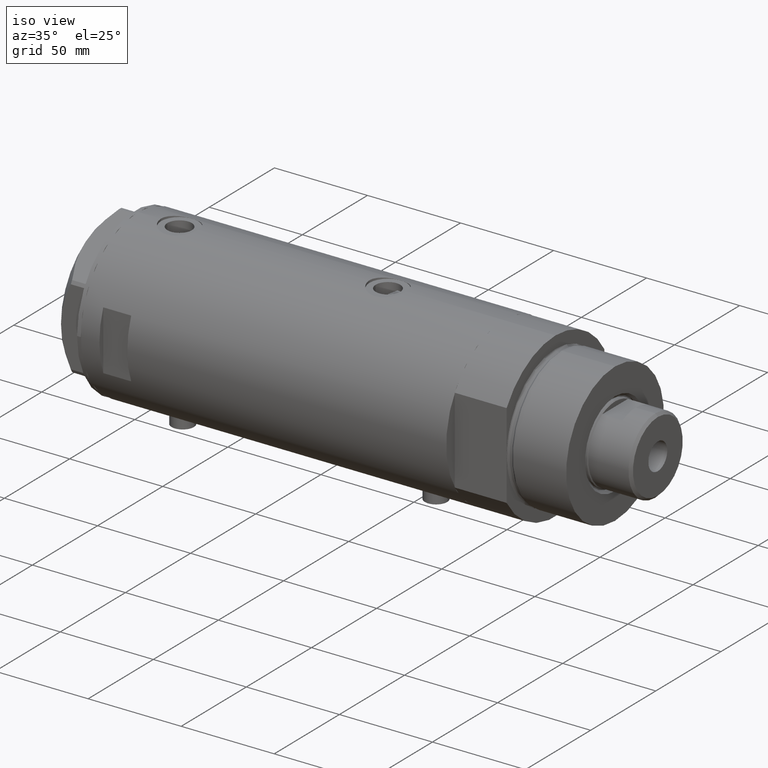
[diagram: clean part render]
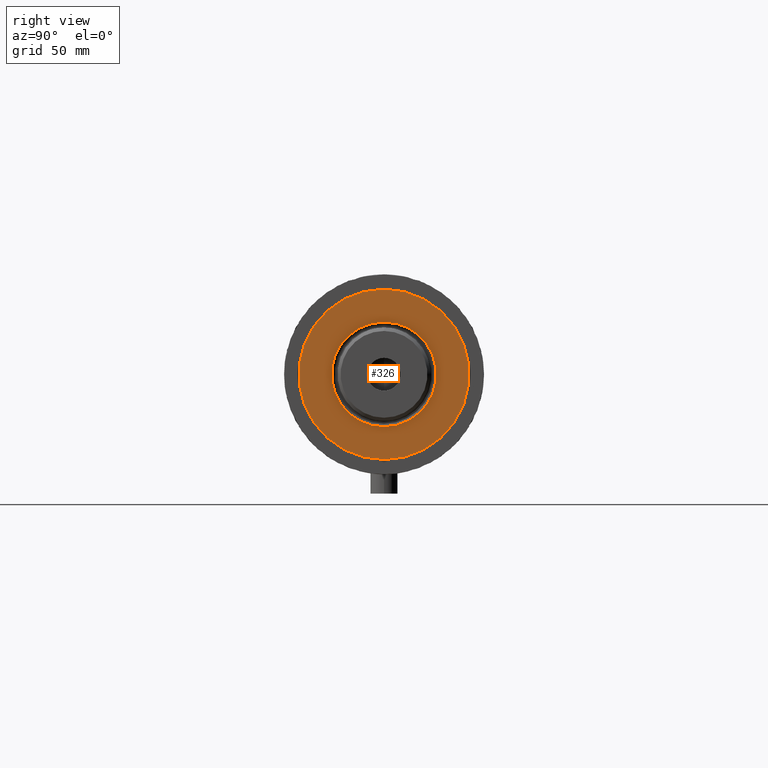
[diagram: tour spotlight — one face highlighted and labeled with its STEP entity id]
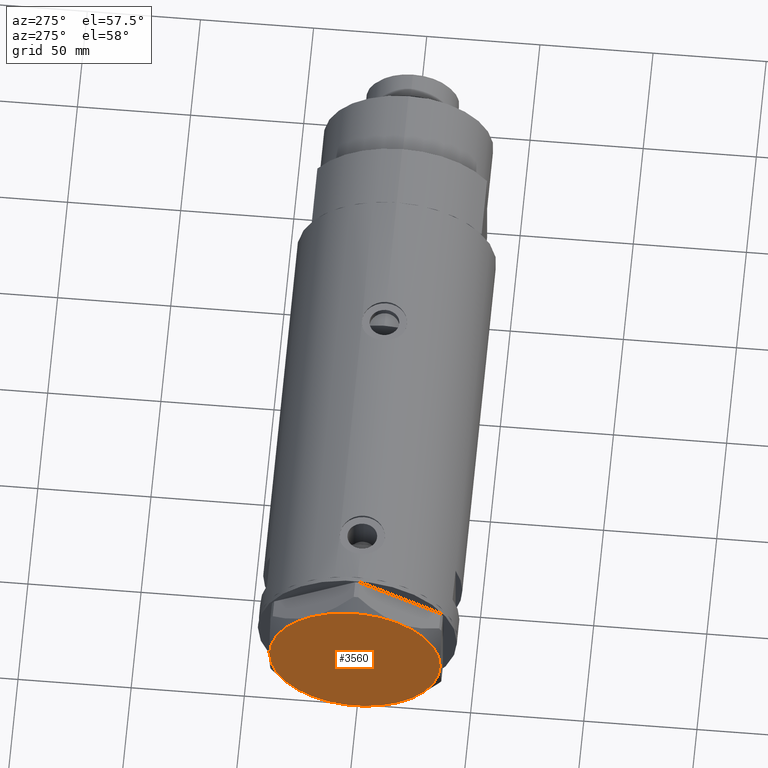
[diagram: tour spotlight — one face highlighted and labeled with its STEP entity id]
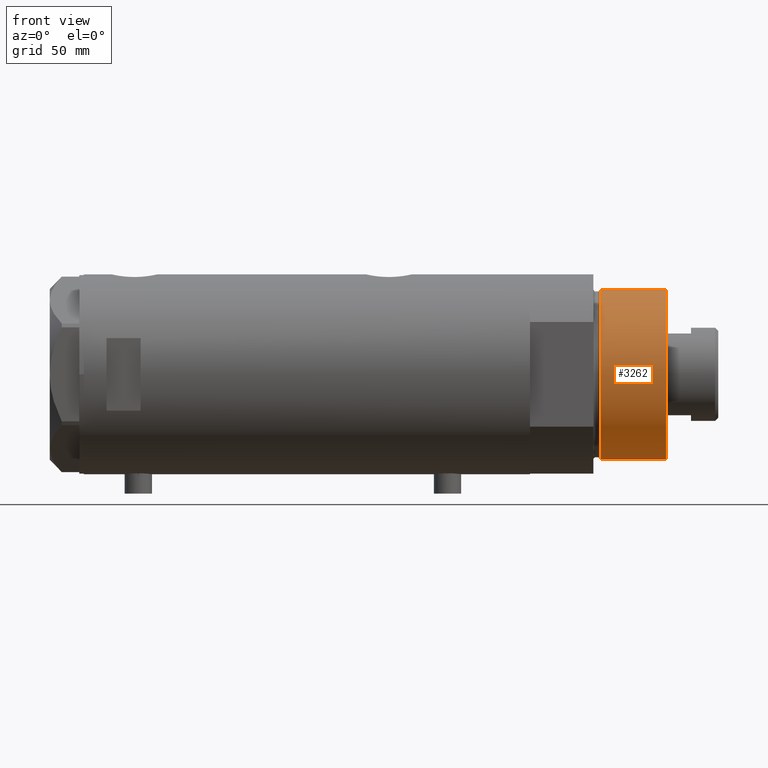
[diagram: tour spotlight — one face highlighted and labeled with its STEP entity id]
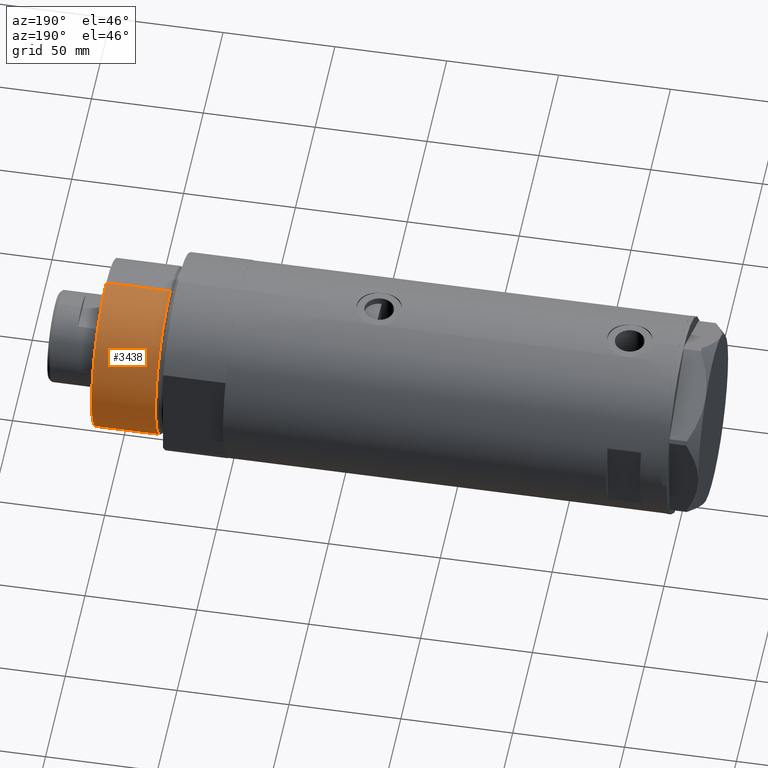
[diagram: tour spotlight — one face highlighted and labeled with its STEP entity id]
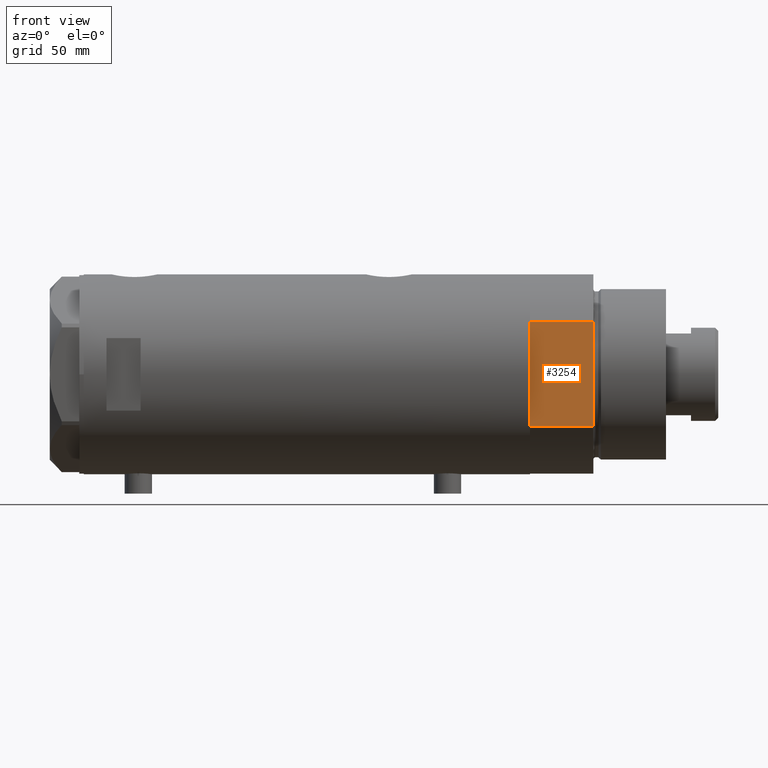
[diagram: tour spotlight — one face highlighted and labeled with its STEP entity id]
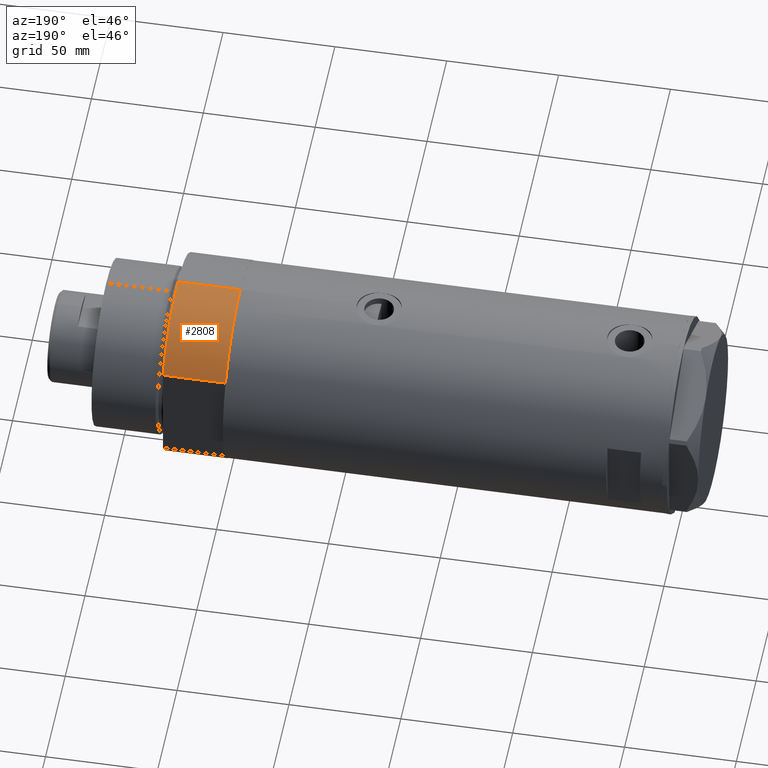
[diagram: tour spotlight — one face highlighted and labeled with its STEP entity id]
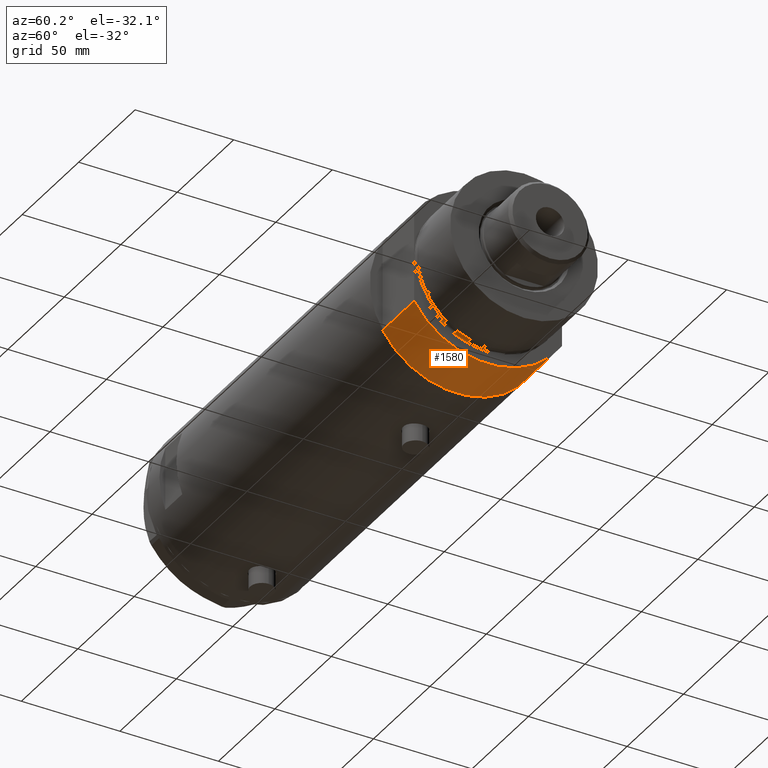
[diagram: tour spotlight — one face highlighted and labeled with its STEP entity id]
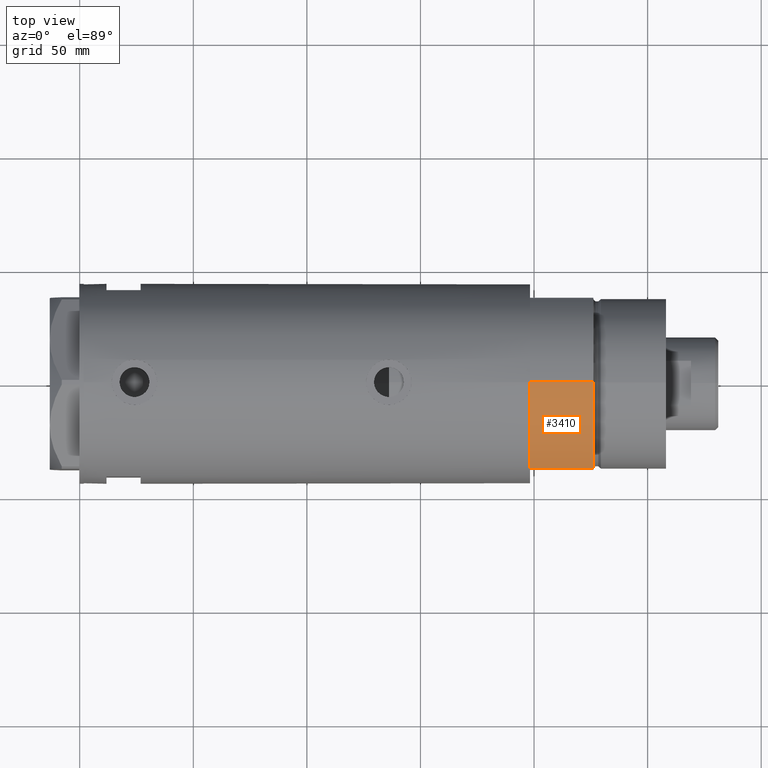
[diagram: tour spotlight — one face highlighted and labeled with its STEP entity id]
A machine part: a face-by-face anatomy tour. The part has 121 B-rep faces; the first image is the clean iso view, then the 8 largest visible faces are spotlighted one at a time (largest first), each with its STEP entity span.

Face 1 — right view, entity #326. In plain terms, the highlighted planar face has unit normal (1, 0, -0).
Definition (entity closure, byte-faithful):
#326 = ADVANCED_FACE ( 'NONE', ( #1110, #1464 ), #482, .T. ) ;
#435 = AXIS2_PLACEMENT_3D ( 'NONE', #1528, #3888, #1127 ) ;
#482 = PLANE ( 'NONE',  #1260 ) ;
#544 = DIRECTION ( 'NONE',  ( 1.000000000000000000, 0.000000000000000000, 0.000000000000000000 ) ) ;
#603 = EDGE_CURVE ( 'NONE', #2899, #1132, #3187, .T. ) ;
#770 = EDGE_CURVE ( 'NONE', #4151, #2668, #2747, .T. ) ;
#1110 = FACE_BOUND ( 'NONE', #3781, .T. ) ;
#1127 = DIRECTION ( 'NONE',  ( 1.000000000000000000, 0.000000000000000000, 0.000000000000000000 ) ) ;
#1132 = VERTEX_POINT ( 'NONE', #2380 ) ;
#1176 = DIRECTION ( 'NONE',  ( 0.000000000000000000, 0.000000000000000000, 1.000000000000000000 ) ) ;
#1189 = CARTESIAN_POINT ( 'NONE',  ( 0.000000000000000000, 0.000000000000000000, 59.89999999999999147 ) ) ;
#1260 = AXIS2_PLACEMENT_3D ( 'NONE', #3975, #1176, #2605 ) ;
#1464 = FACE_OUTER_BOUND ( 'NONE', #4139, .T. ) ;
#1483 = ORIENTED_EDGE ( 'NONE', *, *, #1958, .T. ) ;
#1528 = CARTESIAN_POINT ( 'NONE',  ( 0.000000000000000000, 0.000000000000000000, 59.89999999999999147 ) ) ;
#1665 = CARTESIAN_POINT ( 'NONE',  ( -37.50000000000000711, 0.000000000000000000, 59.89999999999999147 ) ) ;
#1714 = CIRCLE ( 'NONE', #2810, 37.50000000000000711 ) ;
#1716 = AXIS2_PLACEMENT_3D ( 'NONE', #4535, #2399, #3193 ) ;
#1863 = ORIENTED_EDGE ( 'NONE', *, *, #4217, .T. ) ;
#1958 = EDGE_CURVE ( 'NONE', #2668, #4151, #1714, .T. ) ;
#2242 = DIRECTION ( 'NONE',  ( 1.000000000000000000, 0.000000000000000000, 0.000000000000000000 ) ) ;
#2380 = CARTESIAN_POINT ( 'NONE',  ( -23.05000000000002913, 2.822810872034651791E-15, 59.89999999999999147 ) ) ;
#2399 = DIRECTION ( 'NONE',  ( -0.000000000000000000, -0.000000000000000000, -1.000000000000000000 ) ) ;
#2519 = ORIENTED_EDGE ( 'NONE', *, *, #603, .T. ) ;
#2605 = DIRECTION ( 'NONE',  ( 1.000000000000000000, 0.000000000000000000, -0.000000000000000000 ) ) ;
#2668 = VERTEX_POINT ( 'NONE', #1665 ) ;
#2747 = CIRCLE ( 'NONE', #435, 37.50000000000000711 ) ;
#2810 = AXIS2_PLACEMENT_3D ( 'NONE', #1189, #3590, #2242 ) ;
#2899 = VERTEX_POINT ( 'NONE', #4401 ) ;
#2916 = AXIS2_PLACEMENT_3D ( 'NONE', #3701, #3392, #544 ) ;
#3187 = CIRCLE ( 'NONE', #1716, 23.05000000000002913 ) ;
#3193 = DIRECTION ( 'NONE',  ( 1.000000000000000000, 0.000000000000000000, 0.000000000000000000 ) ) ;
#3303 = CIRCLE ( 'NONE', #2916, 23.05000000000002913 ) ;
#3392 = DIRECTION ( 'NONE',  ( -0.000000000000000000, -0.000000000000000000, -1.000000000000000000 ) ) ;
#3590 = DIRECTION ( 'NONE',  ( 0.000000000000000000, 0.000000000000000000, 1.000000000000000000 ) ) ;
#3678 = CARTESIAN_POINT ( 'NONE',  ( 37.50000000000000711, 4.592425496802575156E-15, 59.89999999999999147 ) ) ;
#3701 = CARTESIAN_POINT ( 'NONE',  ( 0.000000000000000000, 0.000000000000000000, 59.89999999999999147 ) ) ;
#3781 = EDGE_LOOP ( 'NONE', ( #2519, #1863 ) ) ;
#3888 = DIRECTION ( 'NONE',  ( 0.000000000000000000, 0.000000000000000000, 1.000000000000000000 ) ) ;
#3975 = CARTESIAN_POINT ( 'NONE',  ( 0.000000000000000000, 0.000000000000000000, 59.89999999999999147 ) ) ;
#4139 = EDGE_LOOP ( 'NONE', ( #1483, #4307 ) ) ;
#4151 = VERTEX_POINT ( 'NONE', #3678 ) ;
#4217 = EDGE_CURVE ( 'NONE', #1132, #2899, #3303, .T. ) ;
#4307 = ORIENTED_EDGE ( 'NONE', *, *, #770, .T. ) ;
#4401 = CARTESIAN_POINT ( 'NONE',  ( 23.05000000000002913, 0.000000000000000000, 59.89999999999999147 ) ) ;
#4535 = CARTESIAN_POINT ( 'NONE',  ( 0.000000000000000000, 0.000000000000000000, 59.89999999999999147 ) ) ;

Face 2 — auxiliary view, entity #3560. In plain terms, the highlighted planar face has unit normal (-1, -0, 0).
Definition (entity closure, byte-faithful):
#172 = DIRECTION ( 'NONE',  ( 1.000000000000000000, 0.000000000000000000, -0.000000000000000000 ) ) ;
#437 = CIRCLE ( 'NONE', #1045, 37.75000000000000000 ) ;
#470 = EDGE_CURVE ( 'NONE', #1575, #2095, #4196, .T. ) ;
#527 = PLANE ( 'NONE',  #3460 ) ;
#529 = CIRCLE ( 'NONE', #3115, 37.75000000000000000 ) ;
#585 = DIRECTION ( 'NONE',  ( 0.000000000000000000, 0.000000000000000000, 1.000000000000000000 ) ) ;
#601 = DIRECTION ( 'NONE',  ( 1.000000000000000000, 0.000000000000000000, 0.000000000000000000 ) ) ;
#617 = CARTESIAN_POINT ( 'NONE',  ( -18.87499999999999645, 32.69245899286256218, 13.00000000000000000 ) ) ;
#716 = CIRCLE ( 'NONE', #2177, 37.75000000000000000 ) ;
#757 = VERTEX_POINT ( 'NONE', #3238 ) ;
#774 = ORIENTED_EDGE ( 'NONE', *, *, #2861, .T. ) ;
#903 = CARTESIAN_POINT ( 'NONE',  ( 18.87499999999998579, -32.69245899286256218, 13.00000000000000000 ) ) ;
#915 = DIRECTION ( 'NONE',  ( 1.000000000000000000, 0.000000000000000000, 0.000000000000000000 ) ) ;
#959 = DIRECTION ( 'NONE',  ( 0.000000000000000000, 0.000000000000000000, 1.000000000000000000 ) ) ;
#1033 = ORIENTED_EDGE ( 'NONE', *, *, #1377, .T. ) ;
#1045 = AXIS2_PLACEMENT_3D ( 'NONE', #1611, #1265, #601 ) ;
#1142 = DIRECTION ( 'NONE',  ( 0.000000000000000000, 0.000000000000000000, 1.000000000000000000 ) ) ;
#1168 = EDGE_CURVE ( 'NONE', #2095, #757, #529, .T. ) ;
#1181 = ORIENTED_EDGE ( 'NONE', *, *, #3433, .T. ) ;
#1204 = DIRECTION ( 'NONE',  ( 1.000000000000000000, 0.000000000000000000, 0.000000000000000000 ) ) ;
#1250 = CARTESIAN_POINT ( 'NONE',  ( 0.000000000000000000, 0.000000000000000000, 13.00000000000000000 ) ) ;
#1265 = DIRECTION ( 'NONE',  ( 0.000000000000000000, 0.000000000000000000, 1.000000000000000000 ) ) ;
#1363 = ORIENTED_EDGE ( 'NONE', *, *, #470, .T. ) ;
#1377 = EDGE_CURVE ( 'NONE', #1702, #3248, #3016, .T. ) ;
#1430 = EDGE_LOOP ( 'NONE', ( #1363, #2032, #1181, #1780, #1033, #774 ) ) ;
#1575 = VERTEX_POINT ( 'NONE', #903 ) ;
#1592 = EDGE_CURVE ( 'NONE', #4173, #1702, #437, .T. ) ;
#1597 = CIRCLE ( 'NONE', #2323, 37.75000000000000000 ) ;
#1611 = CARTESIAN_POINT ( 'NONE',  ( 0.000000000000000000, 0.000000000000000000, 13.00000000000000000 ) ) ;
#1620 = CARTESIAN_POINT ( 'NONE',  ( 0.000000000000000000, 0.000000000000000000, 13.00000000000000000 ) ) ;
#1702 = VERTEX_POINT ( 'NONE', #3568 ) ;
#1780 = ORIENTED_EDGE ( 'NONE', *, *, #1592, .T. ) ;
#1938 = CARTESIAN_POINT ( 'NONE',  ( 0.000000000000000000, 0.000000000000000000, 13.00000000000000000 ) ) ;
#2032 = ORIENTED_EDGE ( 'NONE', *, *, #1168, .T. ) ;
#2095 = VERTEX_POINT ( 'NONE', #4074 ) ;
#2177 = AXIS2_PLACEMENT_3D ( 'NONE', #2978, #1142, #1204 ) ;
#2323 = AXIS2_PLACEMENT_3D ( 'NONE', #2705, #959, #3504 ) ;
#2660 = DIRECTION ( 'NONE',  ( 0.000000000000000000, 0.000000000000000000, 1.000000000000000000 ) ) ;
#2705 = CARTESIAN_POINT ( 'NONE',  ( 0.000000000000000000, 0.000000000000000000, 13.00000000000000000 ) ) ;
#2861 = EDGE_CURVE ( 'NONE', #3248, #1575, #716, .T. ) ;
#2897 = DIRECTION ( 'NONE',  ( 0.000000000000000000, 0.000000000000000000, 1.000000000000000000 ) ) ;
#2937 = AXIS2_PLACEMENT_3D ( 'NONE', #4436, #3380, #3482 ) ;
#2978 = CARTESIAN_POINT ( 'NONE',  ( 0.000000000000000000, 0.000000000000000000, 13.00000000000000000 ) ) ;
#3016 = CIRCLE ( 'NONE', #2937, 37.75000000000000000 ) ;
#3115 = AXIS2_PLACEMENT_3D ( 'NONE', #1250, #2660, #915 ) ;
#3238 = CARTESIAN_POINT ( 'NONE',  ( 18.87500000000000000, 32.69245899286255508, 13.00000000000000000 ) ) ;
#3248 = VERTEX_POINT ( 'NONE', #4323 ) ;
#3380 = DIRECTION ( 'NONE',  ( 0.000000000000000000, 0.000000000000000000, 1.000000000000000000 ) ) ;
#3411 = DIRECTION ( 'NONE',  ( 1.000000000000000000, 0.000000000000000000, 0.000000000000000000 ) ) ;
#3414 = AXIS2_PLACEMENT_3D ( 'NONE', #1620, #585, #3411 ) ;
#3433 = EDGE_CURVE ( 'NONE', #757, #4173, #1597, .T. ) ;
#3460 = AXIS2_PLACEMENT_3D ( 'NONE', #1938, #2897, #172 ) ;
#3482 = DIRECTION ( 'NONE',  ( 1.000000000000000000, 0.000000000000000000, 0.000000000000000000 ) ) ;
#3504 = DIRECTION ( 'NONE',  ( 1.000000000000000000, 0.000000000000000000, 0.000000000000000000 ) ) ;
#3560 = ADVANCED_FACE ( 'NONE', ( #4490 ), #527, .T. ) ;
#3568 = CARTESIAN_POINT ( 'NONE',  ( -37.75000000000000000, -1.201851678989727067E-14, 13.00000000000000000 ) ) ;
#4074 = CARTESIAN_POINT ( 'NONE',  ( 37.75000000000000711, 1.802777518484591547E-14, 13.00000000000000000 ) ) ;
#4173 = VERTEX_POINT ( 'NONE', #617 ) ;
#4196 = CIRCLE ( 'NONE', #3414, 37.75000000000000000 ) ;
#4323 = CARTESIAN_POINT ( 'NONE',  ( -18.87499999999999645, -32.69245899286255508, 13.00000000000000000 ) ) ;
#4436 = CARTESIAN_POINT ( 'NONE',  ( 0.000000000000000000, 0.000000000000000000, 13.00000000000000000 ) ) ;
#4490 = FACE_OUTER_BOUND ( 'NONE', #1430, .T. ) ;

Face 3 — front view, entity #3262. In plain terms, the highlighted cylindrical surface (partial cylindrical patch) has radius 37.5 mm, axis along (-1, -0, 0).
Definition (entity closure, byte-faithful):
#85 = CARTESIAN_POINT ( 'NONE',  ( 37.50000000000000711, 4.592425496802575156E-15, 59.89999999999999147 ) ) ;
#105 = DIRECTION ( 'NONE',  ( -0.000000000000000000, -0.000000000000000000, -1.000000000000000000 ) ) ;
#508 = CYLINDRICAL_SURFACE ( 'NONE', #2702, 37.50000000000000711 ) ;
#563 = DIRECTION ( 'NONE',  ( -0.000000000000000000, -0.000000000000000000, 1.000000000000000000 ) ) ;
#985 = CARTESIAN_POINT ( 'NONE',  ( 37.50000000000000711, 4.592425496802575156E-15, 31.27384048104054415 ) ) ;
#1186 = EDGE_CURVE ( 'NONE', #1582, #3424, #3690, .T. ) ;
#1189 = CARTESIAN_POINT ( 'NONE',  ( 0.000000000000000000, 0.000000000000000000, 59.89999999999999147 ) ) ;
#1217 = EDGE_CURVE ( 'NONE', #4151, #3424, #2647, .T. ) ;
#1221 = ORIENTED_EDGE ( 'NONE', *, *, #1217, .F. ) ;
#1582 = VERTEX_POINT ( 'NONE', #1985 ) ;
#1584 = CARTESIAN_POINT ( 'NONE',  ( -37.50000000000000711, 0.000000000000000000, 59.89999999999999147 ) ) ;
#1633 = ORIENTED_EDGE ( 'NONE', *, *, #1186, .T. ) ;
#1665 = CARTESIAN_POINT ( 'NONE',  ( -37.50000000000000711, 0.000000000000000000, 59.89999999999999147 ) ) ;
#1714 = CIRCLE ( 'NONE', #2810, 37.50000000000000711 ) ;
#1721 = AXIS2_PLACEMENT_3D ( 'NONE', #3717, #563, #3388 ) ;
#1958 = EDGE_CURVE ( 'NONE', #2668, #4151, #1714, .T. ) ;
#1985 = CARTESIAN_POINT ( 'NONE',  ( -37.50000000000000711, 0.000000000000000000, 31.27384048104054415 ) ) ;
#2242 = DIRECTION ( 'NONE',  ( 1.000000000000000000, 0.000000000000000000, 0.000000000000000000 ) ) ;
#2555 = DIRECTION ( 'NONE',  ( -0.000000000000000000, -0.000000000000000000, -1.000000000000000000 ) ) ;
#2580 = CARTESIAN_POINT ( 'NONE',  ( 0.000000000000000000, 0.000000000000000000, 59.89999999999999147 ) ) ;
#2647 = LINE ( 'NONE', #85, #3497 ) ;
#2668 = VERTEX_POINT ( 'NONE', #1665 ) ;
#2702 = AXIS2_PLACEMENT_3D ( 'NONE', #2580, #2555, #3974 ) ;
#2810 = AXIS2_PLACEMENT_3D ( 'NONE', #1189, #3590, #2242 ) ;
#2847 = EDGE_CURVE ( 'NONE', #2668, #1582, #3323, .T. ) ;
#2896 = DIRECTION ( 'NONE',  ( -0.000000000000000000, -0.000000000000000000, -1.000000000000000000 ) ) ;
#2924 = FACE_OUTER_BOUND ( 'NONE', #4522, .T. ) ;
#3151 = VECTOR ( 'NONE', #2896, 1000.000000000000000 ) ;
#3262 = ADVANCED_FACE ( 'NONE', ( #2924 ), #508, .T. ) ;
#3323 = LINE ( 'NONE', #1584, #3151 ) ;
#3339 = ORIENTED_EDGE ( 'NONE', *, *, #1958, .F. ) ;
#3388 = DIRECTION ( 'NONE',  ( 1.000000000000000000, 0.000000000000000000, 0.000000000000000000 ) ) ;
#3424 = VERTEX_POINT ( 'NONE', #985 ) ;
#3497 = VECTOR ( 'NONE', #105, 1000.000000000000000 ) ;
#3587 = ORIENTED_EDGE ( 'NONE', *, *, #2847, .T. ) ;
#3590 = DIRECTION ( 'NONE',  ( 0.000000000000000000, 0.000000000000000000, 1.000000000000000000 ) ) ;
#3678 = CARTESIAN_POINT ( 'NONE',  ( 37.50000000000000711, 4.592425496802575156E-15, 59.89999999999999147 ) ) ;
#3690 = CIRCLE ( 'NONE', #1721, 37.50000000000000711 ) ;
#3717 = CARTESIAN_POINT ( 'NONE',  ( 0.000000000000000000, 0.000000000000000000, 31.27384048104054415 ) ) ;
#3974 = DIRECTION ( 'NONE',  ( -1.000000000000000000, 0.000000000000000000, 0.000000000000000000 ) ) ;
#4151 = VERTEX_POINT ( 'NONE', #3678 ) ;
#4522 = EDGE_LOOP ( 'NONE', ( #1221, #3339, #3587, #1633 ) ) ;

Face 4 — auxiliary view, entity #3438. In plain terms, the highlighted cylindrical surface (partial cylindrical patch) has radius 37.5 mm, axis along (-1, -0, 0).
Definition (entity closure, byte-faithful):
#85 = CARTESIAN_POINT ( 'NONE',  ( 37.50000000000000711, 4.592425496802575156E-15, 59.89999999999999147 ) ) ;
#105 = DIRECTION ( 'NONE',  ( -0.000000000000000000, -0.000000000000000000, -1.000000000000000000 ) ) ;
#328 = FACE_OUTER_BOUND ( 'NONE', #619, .T. ) ;
#342 = EDGE_CURVE ( 'NONE', #3424, #1582, #3616, .T. ) ;
#435 = AXIS2_PLACEMENT_3D ( 'NONE', #1528, #3888, #1127 ) ;
#619 = EDGE_LOOP ( 'NONE', ( #1547, #3632, #4486, #3135 ) ) ;
#770 = EDGE_CURVE ( 'NONE', #4151, #2668, #2747, .T. ) ;
#771 = DIRECTION ( 'NONE',  ( -0.000000000000000000, -0.000000000000000000, 1.000000000000000000 ) ) ;
#932 = DIRECTION ( 'NONE',  ( -1.000000000000000000, 0.000000000000000000, 0.000000000000000000 ) ) ;
#985 = CARTESIAN_POINT ( 'NONE',  ( 37.50000000000000711, 4.592425496802575156E-15, 31.27384048104054415 ) ) ;
#1127 = DIRECTION ( 'NONE',  ( 1.000000000000000000, 0.000000000000000000, 0.000000000000000000 ) ) ;
#1217 = EDGE_CURVE ( 'NONE', #4151, #3424, #2647, .T. ) ;
#1354 = CYLINDRICAL_SURFACE ( 'NONE', #2404, 37.50000000000000711 ) ;
#1528 = CARTESIAN_POINT ( 'NONE',  ( 0.000000000000000000, 0.000000000000000000, 59.89999999999999147 ) ) ;
#1547 = ORIENTED_EDGE ( 'NONE', *, *, #770, .F. ) ;
#1582 = VERTEX_POINT ( 'NONE', #1985 ) ;
#1584 = CARTESIAN_POINT ( 'NONE',  ( -37.50000000000000711, 0.000000000000000000, 59.89999999999999147 ) ) ;
#1665 = CARTESIAN_POINT ( 'NONE',  ( -37.50000000000000711, 0.000000000000000000, 59.89999999999999147 ) ) ;
#1747 = CARTESIAN_POINT ( 'NONE',  ( 0.000000000000000000, 0.000000000000000000, 59.89999999999999147 ) ) ;
#1985 = CARTESIAN_POINT ( 'NONE',  ( -37.50000000000000711, 0.000000000000000000, 31.27384048104054415 ) ) ;
#2404 = AXIS2_PLACEMENT_3D ( 'NONE', #1747, #3435, #932 ) ;
#2511 = DIRECTION ( 'NONE',  ( 1.000000000000000000, 0.000000000000000000, 0.000000000000000000 ) ) ;
#2647 = LINE ( 'NONE', #85, #3497 ) ;
#2668 = VERTEX_POINT ( 'NONE', #1665 ) ;
#2747 = CIRCLE ( 'NONE', #435, 37.50000000000000711 ) ;
#2847 = EDGE_CURVE ( 'NONE', #2668, #1582, #3323, .T. ) ;
#2896 = DIRECTION ( 'NONE',  ( -0.000000000000000000, -0.000000000000000000, -1.000000000000000000 ) ) ;
#3135 = ORIENTED_EDGE ( 'NONE', *, *, #2847, .F. ) ;
#3151 = VECTOR ( 'NONE', #2896, 1000.000000000000000 ) ;
#3257 = AXIS2_PLACEMENT_3D ( 'NONE', #3998, #771, #2511 ) ;
#3323 = LINE ( 'NONE', #1584, #3151 ) ;
#3424 = VERTEX_POINT ( 'NONE', #985 ) ;
#3435 = DIRECTION ( 'NONE',  ( -0.000000000000000000, -0.000000000000000000, -1.000000000000000000 ) ) ;
#3438 = ADVANCED_FACE ( 'NONE', ( #328 ), #1354, .T. ) ;
#3497 = VECTOR ( 'NONE', #105, 1000.000000000000000 ) ;
#3616 = CIRCLE ( 'NONE', #3257, 37.50000000000000711 ) ;
#3632 = ORIENTED_EDGE ( 'NONE', *, *, #1217, .T. ) ;
#3678 = CARTESIAN_POINT ( 'NONE',  ( 37.50000000000000711, 4.592425496802575156E-15, 59.89999999999999147 ) ) ;
#3888 = DIRECTION ( 'NONE',  ( 0.000000000000000000, 0.000000000000000000, 1.000000000000000000 ) ) ;
#3998 = CARTESIAN_POINT ( 'NONE',  ( 0.000000000000000000, 0.000000000000000000, 31.27384048104054415 ) ) ;
#4151 = VERTEX_POINT ( 'NONE', #3678 ) ;
#4486 = ORIENTED_EDGE ( 'NONE', *, *, #342, .T. ) ;

Face 5 — front view, entity #3254. In plain terms, the highlighted planar face has unit normal (-0, 1, 0).
Definition (entity closure, byte-faithful):
#42 = VECTOR ( 'NONE', #4456, 1000.000000000000000 ) ;
#70 = VERTEX_POINT ( 'NONE', #588 ) ;
#98 = CARTESIAN_POINT ( 'NONE',  ( 23.01629857296780557, -37.50000000000000000, 0.000000000000000000 ) ) ;
#176 = LINE ( 'NONE', #829, #2443 ) ;
#291 = VERTEX_POINT ( 'NONE', #2213 ) ;
#310 = ORIENTED_EDGE ( 'NONE', *, *, #375, .F. ) ;
#375 = EDGE_CURVE ( 'NONE', #2222, #291, #2581, .T. ) ;
#451 = LINE ( 'NONE', #98, #2699 ) ;
#499 = VERTEX_POINT ( 'NONE', #1297 ) ;
#524 = VECTOR ( 'NONE', #3933, 1000.000000000000000 ) ;
#561 = LINE ( 'NONE', #4374, #1489 ) ;
#570 = CARTESIAN_POINT ( 'NONE',  ( -23.01629857296780557, -37.50000000000000000, 0.000000000000000000 ) ) ;
#588 = CARTESIAN_POINT ( 'NONE',  ( -23.01629857296780557, -37.50000000000000000, 0.000000000000000000 ) ) ;
#606 = LINE ( 'NONE', #4466, #2104 ) ;
#829 = CARTESIAN_POINT ( 'NONE',  ( -23.01629857296780557, -37.50000000000000000, 27.89999999999999858 ) ) ;
#1297 = CARTESIAN_POINT ( 'NONE',  ( 0.000000000000000000, -37.50000000000000000, 27.89999999999999858 ) ) ;
#1324 = DIRECTION ( 'NONE',  ( -1.000000000000000000, -0.000000000000000000, -0.000000000000000000 ) ) ;
#1489 = VECTOR ( 'NONE', #4099, 1000.000000000000000 ) ;
#1520 = DIRECTION ( 'NONE',  ( -0.000000000000000000, -0.000000000000000000, 1.000000000000000000 ) ) ;
#1531 = DIRECTION ( 'NONE',  ( 0.000000000000000000, -0.000000000000000000, 1.000000000000000000 ) ) ;
#1610 = CARTESIAN_POINT ( 'NONE',  ( -23.01629857296780557, -37.50000000000000000, 0.000000000000000000 ) ) ;
#1638 = LINE ( 'NONE', #1610, #42 ) ;
#1674 = AXIS2_PLACEMENT_3D ( 'NONE', #4392, #2966, #1531 ) ;
#1739 = ORIENTED_EDGE ( 'NONE', *, *, #2368, .F. ) ;
#2017 = EDGE_CURVE ( 'NONE', #291, #70, #2031, .T. ) ;
#2031 = LINE ( 'NONE', #570, #4336 ) ;
#2098 = EDGE_CURVE ( 'NONE', #499, #2333, #561, .T. ) ;
#2104 = VECTOR ( 'NONE', #1324, 1000.000000000000000 ) ;
#2174 = EDGE_CURVE ( 'NONE', #3985, #499, #176, .T. ) ;
#2213 = CARTESIAN_POINT ( 'NONE',  ( -13.91941090707505957, -37.50000000000000000, 0.000000000000000000 ) ) ;
#2222 = VERTEX_POINT ( 'NONE', #2622 ) ;
#2333 = VERTEX_POINT ( 'NONE', #3175 ) ;
#2368 = EDGE_CURVE ( 'NONE', #3496, #2222, #606, .T. ) ;
#2443 = VECTOR ( 'NONE', #2987, 1000.000000000000000 ) ;
#2581 = LINE ( 'NONE', #2886, #524 ) ;
#2622 = CARTESIAN_POINT ( 'NONE',  ( 13.91941090707505957, -37.50000000000000000, 0.000000000000000000 ) ) ;
#2690 = ORIENTED_EDGE ( 'NONE', *, *, #2017, .F. ) ;
#2699 = VECTOR ( 'NONE', #1520, 1000.000000000000000 ) ;
#2885 = EDGE_CURVE ( 'NONE', #3496, #3985, #451, .T. ) ;
#2886 = CARTESIAN_POINT ( 'NONE',  ( -23.01629857296780557, -37.50000000000000000, 0.000000000000000000 ) ) ;
#2928 = ORIENTED_EDGE ( 'NONE', *, *, #2174, .T. ) ;
#2958 = ORIENTED_EDGE ( 'NONE', *, *, #3677, .F. ) ;
#2966 = DIRECTION ( 'NONE',  ( -0.000000000000000000, 1.000000000000000000, 0.000000000000000000 ) ) ;
#2987 = DIRECTION ( 'NONE',  ( -1.000000000000000000, -0.000000000000000000, -0.000000000000000000 ) ) ;
#3175 = CARTESIAN_POINT ( 'NONE',  ( -23.01629857296780557, -37.50000000000000000, 27.89999999999999858 ) ) ;
#3188 = EDGE_LOOP ( 'NONE', ( #2928, #3400, #2958, #2690, #310, #1739, #4511 ) ) ;
#3254 = ADVANCED_FACE ( 'NONE', ( #4413 ), #4368, .F. ) ;
#3400 = ORIENTED_EDGE ( 'NONE', *, *, #2098, .T. ) ;
#3496 = VERTEX_POINT ( 'NONE', #3787 ) ;
#3677 = EDGE_CURVE ( 'NONE', #70, #2333, #1638, .T. ) ;
#3787 = CARTESIAN_POINT ( 'NONE',  ( 23.01629857296780557, -37.50000000000000000, 0.000000000000000000 ) ) ;
#3797 = CARTESIAN_POINT ( 'NONE',  ( 23.01629857296780557, -37.50000000000000000, 27.89999999999999858 ) ) ;
#3933 = DIRECTION ( 'NONE',  ( -1.000000000000000000, -0.000000000000000000, -0.000000000000000000 ) ) ;
#3985 = VERTEX_POINT ( 'NONE', #3797 ) ;
#4099 = DIRECTION ( 'NONE',  ( -1.000000000000000000, -0.000000000000000000, -0.000000000000000000 ) ) ;
#4336 = VECTOR ( 'NONE', #4483, 1000.000000000000000 ) ;
#4368 = PLANE ( 'NONE',  #1674 ) ;
#4374 = CARTESIAN_POINT ( 'NONE',  ( -23.01629857296780557, -37.50000000000000000, 27.89999999999999858 ) ) ;
#4392 = CARTESIAN_POINT ( 'NONE',  ( -23.01629857296780557, -37.50000000000000000, 0.000000000000000000 ) ) ;
#4413 = FACE_OUTER_BOUND ( 'NONE', #3188, .T. ) ;
#4456 = DIRECTION ( 'NONE',  ( -0.000000000000000000, -0.000000000000000000, 1.000000000000000000 ) ) ;
#4466 = CARTESIAN_POINT ( 'NONE',  ( -23.01629857296780557, -37.50000000000000000, 0.000000000000000000 ) ) ;
#4483 = DIRECTION ( 'NONE',  ( -1.000000000000000000, -0.000000000000000000, -0.000000000000000000 ) ) ;
#4511 = ORIENTED_EDGE ( 'NONE', *, *, #2885, .T. ) ;

Face 6 — auxiliary view, entity #2808. In plain terms, the highlighted cylindrical surface (partial cylindrical patch) has radius 44 mm, axis along (-1, -0, 0).
Definition (entity closure, byte-faithful):
#148 = DIRECTION ( 'NONE',  ( -1.000000000000000000, 0.000000000000000000, 0.000000000000000000 ) ) ;
#251 = CARTESIAN_POINT ( 'NONE',  ( -44.00000000000000000, 0.000000000000000000, 27.89999999999999858 ) ) ;
#360 = LINE ( 'NONE', #1810, #1413 ) ;
#468 = DIRECTION ( 'NONE',  ( 1.000000000000000000, 0.000000000000000000, 0.000000000000000000 ) ) ;
#481 = DIRECTION ( 'NONE',  ( -0.000000000000000000, -0.000000000000000000, -1.000000000000000000 ) ) ;
#526 = CYLINDRICAL_SURFACE ( 'NONE', #849, 44.00000000000000000 ) ;
#679 = CARTESIAN_POINT ( 'NONE',  ( 0.000000000000000000, 0.000000000000000000, 27.89999999999999858 ) ) ;
#781 = DIRECTION ( 'NONE',  ( -0.000000000000000000, -0.000000000000000000, -1.000000000000000000 ) ) ;
#811 = CARTESIAN_POINT ( 'NONE',  ( -44.00000000000000000, 0.000000000000000000, 27.89999999999999858 ) ) ;
#843 = ORIENTED_EDGE ( 'NONE', *, *, #2043, .F. ) ;
#849 = AXIS2_PLACEMENT_3D ( 'NONE', #1865, #781, #148 ) ;
#937 = VERTEX_POINT ( 'NONE', #2113 ) ;
#1016 = VERTEX_POINT ( 'NONE', #3292 ) ;
#1302 = AXIS2_PLACEMENT_3D ( 'NONE', #679, #3101, #2019 ) ;
#1413 = VECTOR ( 'NONE', #2608, 1000.000000000000000 ) ;
#1444 = VECTOR ( 'NONE', #481, 1000.000000000000000 ) ;
#1478 = FACE_OUTER_BOUND ( 'NONE', #3654, .T. ) ;
#1729 = VERTEX_POINT ( 'NONE', #4160 ) ;
#1810 = CARTESIAN_POINT ( 'NONE',  ( -23.01629857296780557, 37.50000000000000000, 0.000000000000000000 ) ) ;
#1865 = CARTESIAN_POINT ( 'NONE',  ( 0.000000000000000000, 0.000000000000000000, 27.89999999999999858 ) ) ;
#1898 = EDGE_CURVE ( 'NONE', #1729, #937, #4037, .T. ) ;
#2019 = DIRECTION ( 'NONE',  ( 1.000000000000000000, 0.000000000000000000, 0.000000000000000000 ) ) ;
#2043 = EDGE_CURVE ( 'NONE', #1729, #1016, #360, .T. ) ;
#2113 = CARTESIAN_POINT ( 'NONE',  ( -44.00000000000000000, 0.000000000000000000, 0.000000000000000000 ) ) ;
#2304 = LINE ( 'NONE', #811, #1444 ) ;
#2608 = DIRECTION ( 'NONE',  ( -0.000000000000000000, -0.000000000000000000, 1.000000000000000000 ) ) ;
#2666 = VERTEX_POINT ( 'NONE', #251 ) ;
#2717 = ORIENTED_EDGE ( 'NONE', *, *, #3378, .F. ) ;
#2808 = ADVANCED_FACE ( 'NONE', ( #1478 ), #526, .T. ) ;
#3030 = ORIENTED_EDGE ( 'NONE', *, *, #3207, .F. ) ;
#3101 = DIRECTION ( 'NONE',  ( 0.000000000000000000, 0.000000000000000000, 1.000000000000000000 ) ) ;
#3207 = EDGE_CURVE ( 'NONE', #2666, #937, #2304, .T. ) ;
#3292 = CARTESIAN_POINT ( 'NONE',  ( -23.01629857296780557, 37.50000000000000000, 27.89999999999999858 ) ) ;
#3295 = CIRCLE ( 'NONE', #1302, 44.00000000000000000 ) ;
#3378 = EDGE_CURVE ( 'NONE', #1016, #2666, #3295, .T. ) ;
#3633 = DIRECTION ( 'NONE',  ( 0.000000000000000000, 0.000000000000000000, 1.000000000000000000 ) ) ;
#3654 = EDGE_LOOP ( 'NONE', ( #3030, #2717, #843, #4156 ) ) ;
#3681 = CARTESIAN_POINT ( 'NONE',  ( 0.000000000000000000, 0.000000000000000000, 0.000000000000000000 ) ) ;
#3840 = AXIS2_PLACEMENT_3D ( 'NONE', #3681, #3633, #468 ) ;
#4037 = CIRCLE ( 'NONE', #3840, 44.00000000000000000 ) ;
#4156 = ORIENTED_EDGE ( 'NONE', *, *, #1898, .T. ) ;
#4160 = CARTESIAN_POINT ( 'NONE',  ( -23.01629857296780557, 37.50000000000000000, 0.000000000000000000 ) ) ;

Face 7 — auxiliary view, entity #1580. In plain terms, the highlighted cylindrical surface (partial cylindrical patch) has radius 44 mm, axis along (-1, -0, 0).
Definition (entity closure, byte-faithful):
#5 = CIRCLE ( 'NONE', #4340, 44.00000000000000000 ) ;
#41 = DIRECTION ( 'NONE',  ( -0.000000000000000000, -0.000000000000000000, 1.000000000000000000 ) ) ;
#98 = CARTESIAN_POINT ( 'NONE',  ( 23.01629857296780557, -37.50000000000000000, 0.000000000000000000 ) ) ;
#107 = ORIENTED_EDGE ( 'NONE', *, *, #573, .F. ) ;
#206 = CARTESIAN_POINT ( 'NONE',  ( 0.000000000000000000, 0.000000000000000000, 27.89999999999999858 ) ) ;
#217 = AXIS2_PLACEMENT_3D ( 'NONE', #4459, #298, #954 ) ;
#298 = DIRECTION ( 'NONE',  ( -0.000000000000000000, -0.000000000000000000, -1.000000000000000000 ) ) ;
#451 = LINE ( 'NONE', #98, #2699 ) ;
#573 = EDGE_CURVE ( 'NONE', #3985, #2541, #5, .T. ) ;
#577 = FACE_OUTER_BOUND ( 'NONE', #4524, .T. ) ;
#852 = DIRECTION ( 'NONE',  ( 1.000000000000000000, 0.000000000000000000, 0.000000000000000000 ) ) ;
#954 = DIRECTION ( 'NONE',  ( -1.000000000000000000, 0.000000000000000000, 0.000000000000000000 ) ) ;
#1088 = CARTESIAN_POINT ( 'NONE',  ( 23.01629857296780557, 37.50000000000000000, 0.000000000000000000 ) ) ;
#1098 = ORIENTED_EDGE ( 'NONE', *, *, #2257, .T. ) ;
#1355 = DIRECTION ( 'NONE',  ( 0.000000000000000000, 0.000000000000000000, 1.000000000000000000 ) ) ;
#1520 = DIRECTION ( 'NONE',  ( -0.000000000000000000, -0.000000000000000000, 1.000000000000000000 ) ) ;
#1580 = ADVANCED_FACE ( 'NONE', ( #577 ), #3067, .T. ) ;
#2062 = ORIENTED_EDGE ( 'NONE', *, *, #3340, .T. ) ;
#2257 = EDGE_CURVE ( 'NONE', #4442, #2541, #3541, .T. ) ;
#2316 = VECTOR ( 'NONE', #41, 1000.000000000000000 ) ;
#2374 = DIRECTION ( 'NONE',  ( 1.000000000000000000, 0.000000000000000000, 0.000000000000000000 ) ) ;
#2541 = VERTEX_POINT ( 'NONE', #4000 ) ;
#2562 = CARTESIAN_POINT ( 'NONE',  ( 23.01629857296780557, 37.50000000000000000, 0.000000000000000000 ) ) ;
#2699 = VECTOR ( 'NONE', #1520, 1000.000000000000000 ) ;
#2885 = EDGE_CURVE ( 'NONE', #3496, #3985, #451, .T. ) ;
#2981 = CIRCLE ( 'NONE', #3300, 44.00000000000000000 ) ;
#3067 = CYLINDRICAL_SURFACE ( 'NONE', #217, 44.00000000000000000 ) ;
#3300 = AXIS2_PLACEMENT_3D ( 'NONE', #3711, #3997, #852 ) ;
#3340 = EDGE_CURVE ( 'NONE', #3496, #4442, #2981, .T. ) ;
#3496 = VERTEX_POINT ( 'NONE', #3787 ) ;
#3541 = LINE ( 'NONE', #1088, #2316 ) ;
#3711 = CARTESIAN_POINT ( 'NONE',  ( 0.000000000000000000, 0.000000000000000000, 0.000000000000000000 ) ) ;
#3787 = CARTESIAN_POINT ( 'NONE',  ( 23.01629857296780557, -37.50000000000000000, 0.000000000000000000 ) ) ;
#3797 = CARTESIAN_POINT ( 'NONE',  ( 23.01629857296780557, -37.50000000000000000, 27.89999999999999858 ) ) ;
#3985 = VERTEX_POINT ( 'NONE', #3797 ) ;
#3997 = DIRECTION ( 'NONE',  ( 0.000000000000000000, 0.000000000000000000, 1.000000000000000000 ) ) ;
#4000 = CARTESIAN_POINT ( 'NONE',  ( 23.01629857296780557, 37.50000000000000000, 27.89999999999999858 ) ) ;
#4028 = ORIENTED_EDGE ( 'NONE', *, *, #2885, .F. ) ;
#4340 = AXIS2_PLACEMENT_3D ( 'NONE', #206, #1355, #2374 ) ;
#4442 = VERTEX_POINT ( 'NONE', #2562 ) ;
#4459 = CARTESIAN_POINT ( 'NONE',  ( 0.000000000000000000, 0.000000000000000000, 27.89999999999999858 ) ) ;
#4524 = EDGE_LOOP ( 'NONE', ( #107, #4028, #2062, #1098 ) ) ;

Face 8 — top view, entity #3410. In plain terms, the highlighted cylindrical surface (partial cylindrical patch) has radius 44 mm, axis along (-1, -0, 0).
Definition (entity closure, byte-faithful):
#42 = VECTOR ( 'NONE', #4456, 1000.000000000000000 ) ;
#70 = VERTEX_POINT ( 'NONE', #588 ) ;
#251 = CARTESIAN_POINT ( 'NONE',  ( -44.00000000000000000, 0.000000000000000000, 27.89999999999999858 ) ) ;
#303 = CARTESIAN_POINT ( 'NONE',  ( 0.000000000000000000, 0.000000000000000000, 27.89999999999999858 ) ) ;
#410 = CIRCLE ( 'NONE', #4123, 44.00000000000000000 ) ;
#481 = DIRECTION ( 'NONE',  ( -0.000000000000000000, -0.000000000000000000, -1.000000000000000000 ) ) ;
#588 = CARTESIAN_POINT ( 'NONE',  ( -23.01629857296780557, -37.50000000000000000, 0.000000000000000000 ) ) ;
#811 = CARTESIAN_POINT ( 'NONE',  ( -44.00000000000000000, 0.000000000000000000, 27.89999999999999858 ) ) ;
#937 = VERTEX_POINT ( 'NONE', #2113 ) ;
#1157 = DIRECTION ( 'NONE',  ( 1.000000000000000000, 0.000000000000000000, 0.000000000000000000 ) ) ;
#1444 = VECTOR ( 'NONE', #481, 1000.000000000000000 ) ;
#1610 = CARTESIAN_POINT ( 'NONE',  ( -23.01629857296780557, -37.50000000000000000, 0.000000000000000000 ) ) ;
#1638 = LINE ( 'NONE', #1610, #42 ) ;
#1649 = FACE_OUTER_BOUND ( 'NONE', #3222, .T. ) ;
#2067 = EDGE_CURVE ( 'NONE', #2666, #2333, #410, .T. ) ;
#2113 = CARTESIAN_POINT ( 'NONE',  ( -44.00000000000000000, 0.000000000000000000, 0.000000000000000000 ) ) ;
#2171 = CARTESIAN_POINT ( 'NONE',  ( 0.000000000000000000, 0.000000000000000000, 27.89999999999999858 ) ) ;
#2291 = ORIENTED_EDGE ( 'NONE', *, *, #3207, .T. ) ;
#2304 = LINE ( 'NONE', #811, #1444 ) ;
#2333 = VERTEX_POINT ( 'NONE', #3175 ) ;
#2357 = CARTESIAN_POINT ( 'NONE',  ( 0.000000000000000000, 0.000000000000000000, 0.000000000000000000 ) ) ;
#2424 = CYLINDRICAL_SURFACE ( 'NONE', #3872, 44.00000000000000000 ) ;
#2666 = VERTEX_POINT ( 'NONE', #251 ) ;
#3046 = DIRECTION ( 'NONE',  ( -0.000000000000000000, -0.000000000000000000, -1.000000000000000000 ) ) ;
#3074 = DIRECTION ( 'NONE',  ( -1.000000000000000000, 0.000000000000000000, 0.000000000000000000 ) ) ;
#3175 = CARTESIAN_POINT ( 'NONE',  ( -23.01629857296780557, -37.50000000000000000, 27.89999999999999858 ) ) ;
#3207 = EDGE_CURVE ( 'NONE', #2666, #937, #2304, .T. ) ;
#3222 = EDGE_LOOP ( 'NONE', ( #3599, #2291, #3653, #3882 ) ) ;
#3290 = DIRECTION ( 'NONE',  ( 0.000000000000000000, 0.000000000000000000, 1.000000000000000000 ) ) ;
#3379 = AXIS2_PLACEMENT_3D ( 'NONE', #2357, #4005, #3770 ) ;
#3410 = ADVANCED_FACE ( 'NONE', ( #1649 ), #2424, .T. ) ;
#3464 = CIRCLE ( 'NONE', #3379, 44.00000000000000000 ) ;
#3599 = ORIENTED_EDGE ( 'NONE', *, *, #2067, .F. ) ;
#3653 = ORIENTED_EDGE ( 'NONE', *, *, #4172, .T. ) ;
#3677 = EDGE_CURVE ( 'NONE', #70, #2333, #1638, .T. ) ;
#3770 = DIRECTION ( 'NONE',  ( 1.000000000000000000, 0.000000000000000000, 0.000000000000000000 ) ) ;
#3872 = AXIS2_PLACEMENT_3D ( 'NONE', #303, #3046, #3074 ) ;
#3882 = ORIENTED_EDGE ( 'NONE', *, *, #3677, .T. ) ;
#4005 = DIRECTION ( 'NONE',  ( 0.000000000000000000, 0.000000000000000000, 1.000000000000000000 ) ) ;
#4123 = AXIS2_PLACEMENT_3D ( 'NONE', #2171, #3290, #1157 ) ;
#4172 = EDGE_CURVE ( 'NONE', #937, #70, #3464, .T. ) ;
#4456 = DIRECTION ( 'NONE',  ( -0.000000000000000000, -0.000000000000000000, 1.000000000000000000 ) ) ;